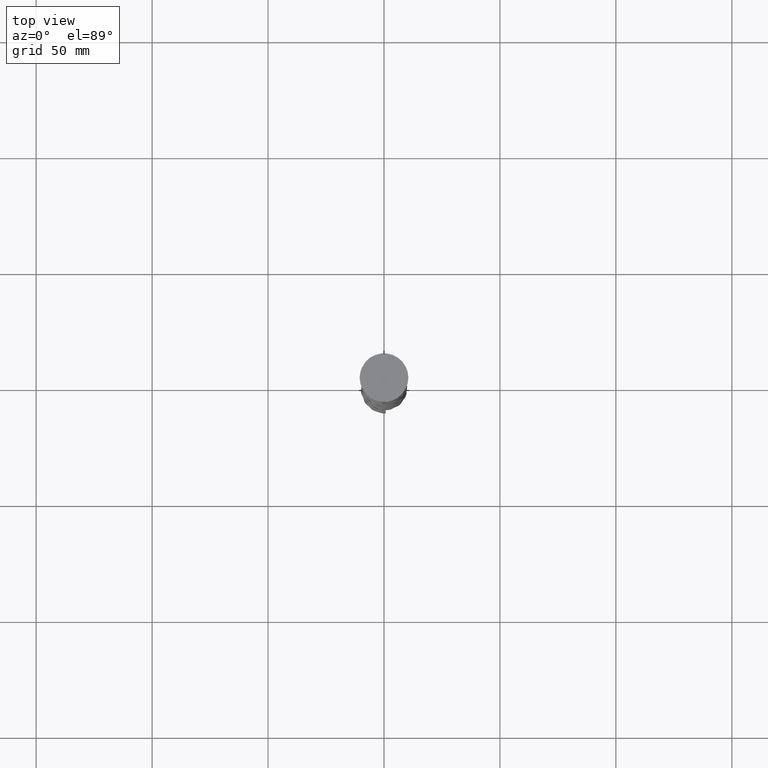
[diagram: clean part render]
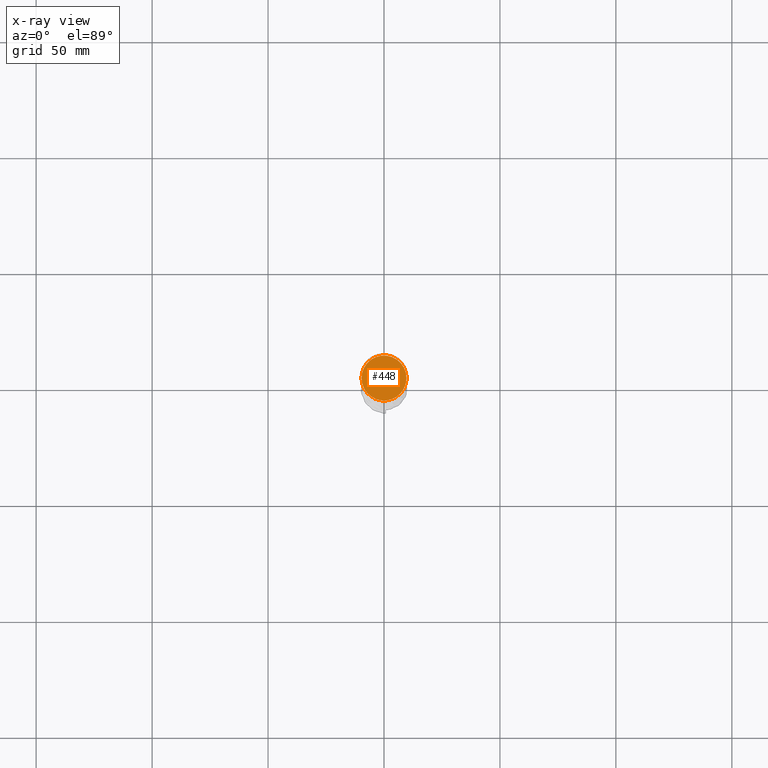
[diagram: x-ray — body ghosted, one internal face saturated and labeled with its STEP entity id]
A machine part, top view, then the same camera in x-ray: the body is ghosted and one INTERNAL B-rep face — a face not visible from any outside direction — is saturated and labeled: STEP entity #448.
In plain terms, the highlighted planar face has unit normal (0, 0, -1).
Its self-contained STEP definition (entity closure, byte-faithful):
#254 = EDGE_CURVE ( 'NONE', #424, #3243, #700, .T. ) ;
#424 = VERTEX_POINT ( 'NONE', #1536 ) ;
#448 = ADVANCED_FACE ( 'NONE', ( #3532 ), #4166, .F. ) ;
#570 = ORIENTED_EDGE ( 'NONE', *, *, #254, .T. ) ;
#700 = CIRCLE ( 'NONE', #3127, 9.700000000000002842 ) ;
#702 = EDGE_CURVE ( 'NONE', #3243, #424, #3391, .T. ) ;
#992 = DIRECTION ( 'NONE',  ( -1.000000000000000000, 0.000000000000000000, 0.000000000000000000 ) ) ;
#1109 = CARTESIAN_POINT ( 'NONE',  ( 9.700000000000002842, 1.206277097160143024E-15, -12.00000000000000000 ) ) ;
#1178 = EDGE_LOOP ( 'NONE', ( #570, #3800 ) ) ;
#1292 = CARTESIAN_POINT ( 'NONE',  ( 0.000000000000000000, 0.000000000000000000, -12.00000000000000000 ) ) ;
#1336 = CARTESIAN_POINT ( 'NONE',  ( 0.000000000000000000, 0.000000000000000000, -12.00000000000000000 ) ) ;
#1536 = CARTESIAN_POINT ( 'NONE',  ( -9.700000000000002842, 0.000000000000000000, -12.00000000000000000 ) ) ;
#1573 = CARTESIAN_POINT ( 'NONE',  ( 0.000000000000000000, 0.000000000000000000, -12.00000000000000000 ) ) ;
#2542 = AXIS2_PLACEMENT_3D ( 'NONE', #1573, #3817, #3491 ) ;
#2653 = DIRECTION ( 'NONE',  ( -1.000000000000000000, 0.000000000000000000, 0.000000000000000000 ) ) ;
#2691 = AXIS2_PLACEMENT_3D ( 'NONE', #1336, #2964, #2653 ) ;
#2964 = DIRECTION ( 'NONE',  ( -0.000000000000000000, -0.000000000000000000, 1.000000000000000000 ) ) ;
#3127 = AXIS2_PLACEMENT_3D ( 'NONE', #1292, #4263, #992 ) ;
#3243 = VERTEX_POINT ( 'NONE', #1109 ) ;
#3391 = CIRCLE ( 'NONE', #2691, 9.700000000000002842 ) ;
#3491 = DIRECTION ( 'NONE',  ( -1.000000000000000000, 0.000000000000000000, -0.000000000000000000 ) ) ;
#3532 = FACE_OUTER_BOUND ( 'NONE', #1178, .T. ) ;
#3800 = ORIENTED_EDGE ( 'NONE', *, *, #702, .T. ) ;
#3817 = DIRECTION ( 'NONE',  ( 0.000000000000000000, 0.000000000000000000, -1.000000000000000000 ) ) ;
#4166 = PLANE ( 'NONE',  #2542 ) ;
#4263 = DIRECTION ( 'NONE',  ( -0.000000000000000000, -0.000000000000000000, 1.000000000000000000 ) ) ;